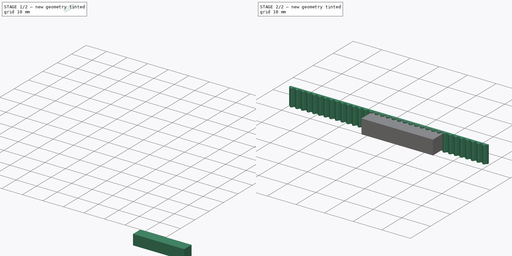
[diagram: build sequence overview — one tinted view per stage of 2, left to right]
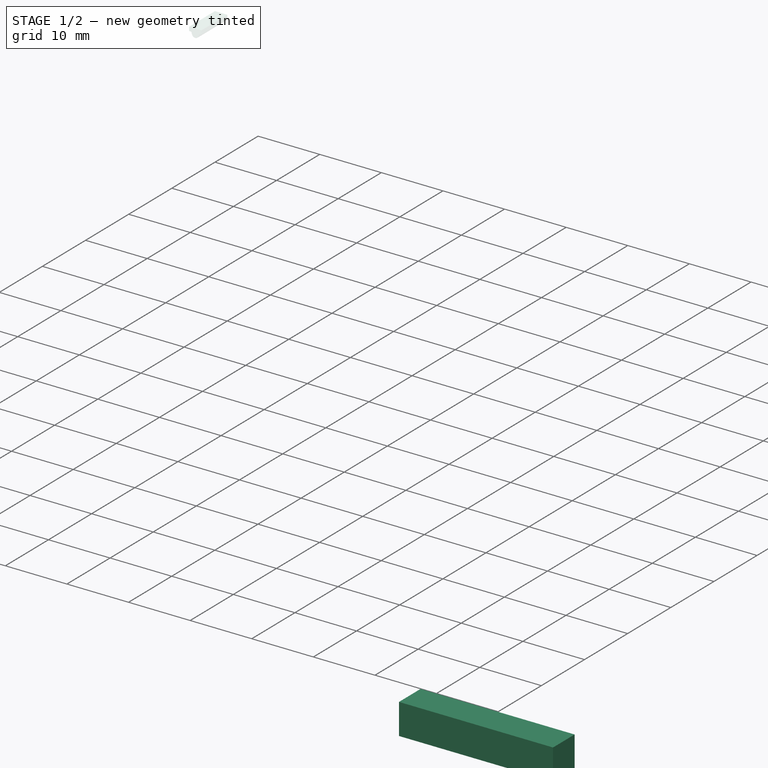
[diagram: stage 1 of 2 — iso view after this stage's code; geometry added in this stage tinted green]
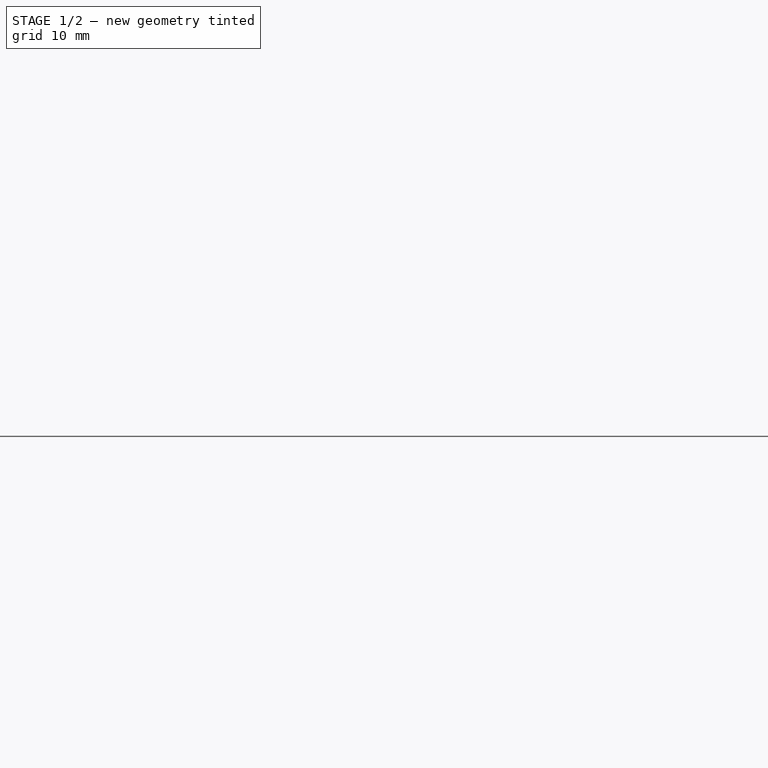
[diagram: stage 1 of 2 — front view after this stage's code; geometry added in this stage tinted green]
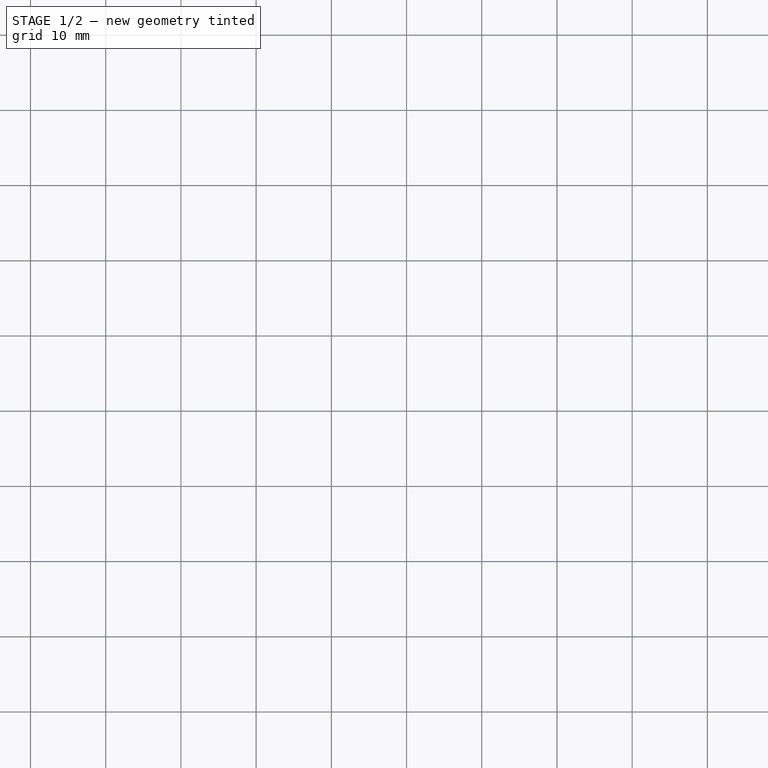
[diagram: stage 1 of 2 — top view after this stage's code; geometry added in this stage tinted green]
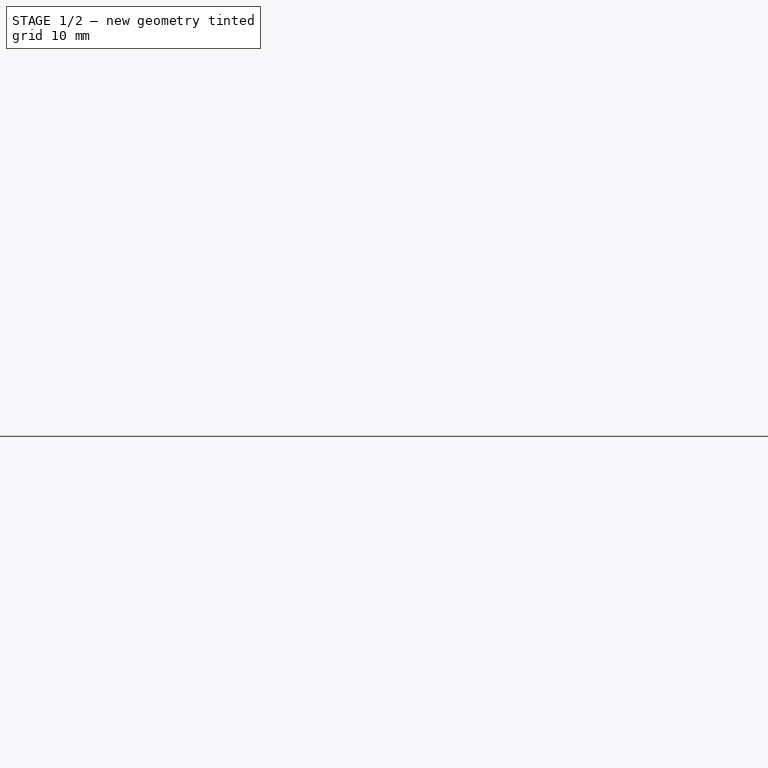
[diagram: stage 1 of 2 — right view after this stage's code; geometry added in this stage tinted green]
FCSTD DOCUMENT  (FreeCAD 0.16R6712 (Git))
Label: Beltpiece
License: All rights reserved
LicenseURL: http://en.wikipedia.org/wiki/All_rights_reserved
objects: Part::Part2DObjectPython×17, Sketcher::SketchObject×3, App::DocumentObjectGroup×3, PartDesign::Pad×1, Part::FeaturePython×1, Part::Box×1, Part::Feature×1
note: 25 computed .brp shape members not serialized (recipe doc carries the construction recipe); baked Part::Feature solids carry a one-line shape summary decoded from their .brp

FEATURE [Sketcher::SketchObject] Sketch  label="Beltpath"
  Placement = pos=(0,0,5.996) rot=(0,0,1;0rad)
  sketch-geometry (1):
    g0: LineSegment StartX=189.589 StartY=-167.771 StartZ=0 EndX=122.258 EndY=-167.771 EndZ=0
  constraints (1):
    c: Horizontal(g0)
FEATURE [Sketcher::SketchObject] Sketch002  label="Timing Belt Master Sketch"
  Placement = pos=(0,0,0) rot=(1,0,0;1.5708rad)
  sketch-geometry (11):
    g0: Circle CenterX=0 CenterY=-0.449 CenterZ=0 NormalX=0 NormalY=0 NormalZ=1 Radius=0.555
    g1: LineSegment [constr] StartX=-1 StartY=-1.004 StartZ=0 EndX=1 EndY=-1.004 EndZ=0
    g2: LineSegment StartX=-1 StartY=-0.254 StartZ=0 EndX=1 EndY=-0.254 EndZ=0
    g3: LineSegment StartX=-1 StartY=0.376 StartZ=0 EndX=1 EndY=0.376 EndZ=0
    g4: LineSegment StartX=-1 StartY=0.376 StartZ=0 EndX=-1 EndY=-1.004 EndZ=0
    g5: LineSegment StartX=1 StartY=0.376 StartZ=0 EndX=1 EndY=-1.004 EndZ=0
    g6: LineSegment [constr] StartX=-1 StartY=-0.449 StartZ=0 EndX=1 EndY=-0.449 EndZ=0
    g7: Circle CenterX=-0.740175 CenterY=-0.404 CenterZ=0 NormalX=0 NormalY=0 NormalZ=1 Radius=0.15
    g8: Circle CenterX=0.740175 CenterY=-0.404 CenterZ=0 NormalX=0 NormalY=0 NormalZ=1 Radius=0.15
    g9: Circle CenterX=-0.4 CenterY=-0.254 CenterZ=0 NormalX=0 NormalY=0 NormalZ=1 Radius=1
    g10: Circle CenterX=0.4 CenterY=-0.254 CenterZ=0 NormalX=0 NormalY=0 NormalZ=1 Radius=1
  constraints (33):
    c: Radius(g0) = 0.555
    c: PointOnObject(g0,g-2)
    c: Horizontal(g1)
    c: Tangent(g1,g0)
    c: DistanceX(g1) = 2
    c: Symmetric(g1,g1,g-2)
    c: Horizontal(g2)
    c: DistanceY(g2,g1) = -0.75
    c: Horizontal(g3)
    c: Equal(g1,g2)
    c: Equal(g2,g3)
    c: Vertical(g4)
    c: Coincident(g4,g1)
    c: Coincident(g4,g3)
    c: PointOnObject(g2,g4)
    c: Coincident(g5,g1)
    c: Coincident(g5,g3)
    c: DistanceY(g3,g1) = -1.38
    c: PointOnObject(g0,g6)
    c: DistanceY(g-1,g2) = -0.254
    c: Horizontal(g6)
    c: PointOnObject(g6,g4)
    c: PointOnObject(g6,g5)
    c: Radius(g7) = 0.15
    c: Equal(g8,g7)
    c: Symmetric(g7,g8,g-2)
    c: Radius(g9) = 1
    c: Equal(g10,g9)
    c: Symmetric(g10,g9,g-2)
    c: DistanceX(g-1,g10) = 0.4
    c: DistanceY(g7,g3) = 0.78
    c: DistanceX(g7,g3) = -0.259825
    c: PointOnObject(g10,g2)
FEATURE [App::DocumentObjectGroup] Group  label="Master Sketch"
  Group = -> [Sketch002]
FEATURE [Part::Part2DObjectPython] Circle  # Draft 2D object (typed FeaturePython)
  FirstAngle = 0
  LastAngle = 0
  MakeFace = true
  Placement = pos=(0,-0.449,0) rot=(0,0,1;0rad)
  Radius = 0.555
FEATURE [Part::Part2DObjectPython] Line  # Draft 2D object (typed FeaturePython)
  ChamferSize = 0
  Closed = false
  End = (1,-0.254,0)
  FilletRadius = 0
  MakeFace = true
  Points = (2) [(-1,-0.254,0),(1,-0.254,0)]
  Start = (-1,-0.254,0)
FEATURE [Part::Part2DObjectPython] DWire  # Draft 2D object (typed FeaturePython)
  ChamferSize = 0
  Closed = false
  End = (1,-1.004,0)
  FilletRadius = 0
  MakeFace = true
  Points = (4) [(-1,-1.004,0),(-1,0.376,0),(1,0.376,0),(1,-1.004,0)]
  Start = (-1,-1.004,0)
FEATURE [Part::Part2DObjectPython] Circle001  # Draft 2D object (typed FeaturePython)
  FirstAngle = 0
  LastAngle = 0
  MakeFace = true
  Placement = pos=(-0.740175,-0.404,0) rot=(0,0,1;0rad)
  Radius = 0.15
FEATURE [Part::Part2DObjectPython] Circle002  # Draft 2D object (typed FeaturePython)
  FirstAngle = 0
  LastAngle = 0
  MakeFace = true
  Placement = pos=(0.740175,-0.404,0) rot=(0,0,1;0rad)
  Radius = 0.15
FEATURE [Part::Part2DObjectPython] Circle003  # Draft 2D object (typed FeaturePython)
  FirstAngle = 0
  LastAngle = 0
  MakeFace = true
  Placement = pos=(-0.4,-0.254,0) rot=(0,0,1;0rad)
  Radius = 1
FEATURE [Part::Part2DObjectPython] Circle004  # Draft 2D object (typed FeaturePython)
  FirstAngle = 0
  LastAngle = 0
  MakeFace = true
  Placement = pos=(0.4,-0.254,0) rot=(0,0,1;0rad)
  Radius = 1
FEATURE [App::DocumentObjectGroup] Group001  label="Draft from Sketch"
  Group = -> [Circle,Line,DWire,Circle001,Circle002,Circle003,Circle004]
FEATURE [Part::Part2DObjectPython] Arc  # Draft 2D object (typed FeaturePython)
  FirstAngle = 7.49472
  LastAngle = 90
  MakeFace = false
  Placement = pos=(-0.740175,-0.404,0) rot=(0,0,1;0rad)
  Radius = 0.15
FEATURE [Part::Part2DObjectPython] Arc001  # Draft 2D object (typed FeaturePython)
  FirstAngle = 90
  LastAngle = 172.505
  MakeFace = false
  Placement = pos=(0.740175,-0.404,0) rot=(0,0,1;0rad)
  Radius = 0.15
FEATURE [Part::Part2DObjectPython] Line001  # Draft 2D object (typed FeaturePython)
  ChamferSize = 0
  Closed = false
  End = (-1,-0.254,0)
  FilletRadius = 0
  MakeFace = false
  Points = (2) [(-0.740175,-0.254,0),(-1,-0.254,0)]
  Start = (-0.740175,-0.254,0)
FEATURE [Part::Part2DObjectPython] Line002  # Draft 2D object (typed FeaturePython)
  ChamferSize = 0
  Closed = false
  End = (1,-0.254,0)
  FilletRadius = 0
  MakeFace = false
  Points = (2) [(0.740175,-0.254,0),(1,-0.254,0)]
  Start = (0.740175,-0.254,0)
FEATURE [Part::Part2DObjectPython] Arc002  # Draft 2D object (typed FeaturePython)
  FirstAngle = -154.011
  LastAngle = -25.9892
  MakeFace = false
  Placement = pos=(0,-0.449,0) rot=(0,0,1;0rad)
  Radius = 0.555
FEATURE [Part::Part2DObjectPython] Arc003  # Draft 2D object (typed FeaturePython)
  FirstAngle = -25.9892
  LastAngle = -7.49472
  MakeFace = false
  Placement = pos=(-0.4,-0.254,0) rot=(0,0,1;0rad)
  Radius = 1
FEATURE [Part::Part2DObjectPython] Arc004  # Draft 2D object (typed FeaturePython)
  FirstAngle = -172.505
  LastAngle = -154.011
  MakeFace = false
  Placement = pos=(0.4,-0.254,0) rot=(0,0,1;0rad)
  Radius = 1
FEATURE [Part::Part2DObjectPython] Line003  # Draft 2D object (typed FeaturePython)
  ChamferSize = 0
  Closed = false
  End = (-1,0.376,0)
  FilletRadius = 0
  MakeFace = false
  Points = (2) [(-1,-0.254,0),(-1,0.376,0)]
  Start = (-1,-0.254,0)
FEATURE [Part::Part2DObjectPython] Line004  # Draft 2D object (typed FeaturePython)
  ChamferSize = 0
  Closed = false
  End = (1,0.376,0)
  FilletRadius = 0
  MakeFace = false
  Points = (2) [(1,-0.254,0),(1,0.376,0)]
  Start = (1,-0.254,0)
FEATURE [Part::Part2DObjectPython] Line005  # Draft 2D object (typed FeaturePython)
  ChamferSize = 0
  Closed = false
  End = (1,0.376,0)
  FilletRadius = 0
  MakeFace = false
  Points = (2) [(-1,0.376,0),(1,0.376,0)]
  Start = (-1,0.376,0)
FEATURE [App::DocumentObjectGroup] Group002  label="Outline from Draft"
  Group = -> [Arc,Arc001,Line001,Line002,Arc002,Arc003,Arc004,Line003,Line004,Line005]
FEATURE [Sketcher::SketchObject] Sketch003  label="Timing Belt sketch from outline"
  Placement = pos=(0,0,0) rot=(1,0,0;1.5708rad)
  sketch-geometry (10):
    g0: ArcOfCircle CenterX=-0.740173 CenterY=-0.403997 CenterZ=0 NormalX=0 NormalY=0 NormalZ=1 Radius=0.149997 StartAngle=0.134719 EndAngle=1.57082
    g1: LineSegment StartX=1 StartY=-0.254 StartZ=0 EndX=1 EndY=0.376 EndZ=0
    g2: ArcOfCircle CenterX=0.740176 CenterY=-0.404 CenterZ=0 NormalX=0 NormalY=0 NormalZ=1 Radius=0.15 StartAngle=1.5708 EndAngle=3.01411
    g3: LineSegment StartX=0.740176 StartY=-0.254 StartZ=0 EndX=1 EndY=-0.254 EndZ=0
    g4: LineSegment StartX=-0.740176 StartY=-0.254 StartZ=0 EndX=-1 EndY=-0.254 EndZ=0
    g5: ArcOfCircle CenterX=0 CenterY=-0.448894 CenterZ=0 NormalX=0 NormalY=0 NormalZ=1 Radius=0.555048 StartAngle=3.59519 EndAngle=5.83002
    g6: ArcOfCircle CenterX=-0.400001 CenterY=-0.254 CenterZ=0 NormalX=0 NormalY=0 NormalZ=1 Radius=1 StartAngle=5.82992 EndAngle=6.15188
    g7: LineSegment StartX=-1 StartY=0.376 StartZ=0 EndX=1 EndY=0.376 EndZ=0
    g8: ArcOfCircle CenterX=0.400001 CenterY=-0.254 CenterZ=0 NormalX=0 NormalY=0 NormalZ=1 Radius=1 StartAngle=3.27181 EndAngle=3.5951
    g9: LineSegment StartX=-1 StartY=-0.254 StartZ=0 EndX=-1 EndY=0.376 EndZ=0
  constraints (34):
    c: Coincident(g7,g9)
    c: Coincident(g1,g7)
    c: Coincident(g4,g9)
    c: Coincident(g0,g4)
    c: Coincident(g0,g8)
    c: Coincident(g5,g8)
    c: Coincident(g5,g6)
    c: Coincident(g2,g6)
    c: Coincident(g2,g3)
    c: Coincident(g1,g3)
    c: PointOnObject(g5,g-2)
    c: DistanceX(g7) = 2
    c: Symmetric(g7,g1,g-2)
    c: Equal(g9,g1)
    c: Equal(g4,g3)
    c: DistanceY(g9) = 0.63
    c: DistanceX(g4) = -0.259824
    c: Vertical(g9)
    c: Horizontal(g4)
    c: Horizontal(g3)
    c: Symmetric(g1,g4,g-2)
    c: DistanceY(g-1,g7) = 0.376
    c: DistanceX(g8) = 0.400001
    c: DistanceY(g8) = -0.254
    c: DistanceX(g6) = -0.400001
    c: DistanceY(g6) = -0.254
    c: DistanceX(g0) = -0.740173
    c: DistanceY(g0) = -0.403997
    c: DistanceX(g2) = 0.740176
    c: DistanceY(g2) = -0.404
    c: Equal(g8,g6)
    c: Radius(g5) = 0.555048
    c: DistanceX(g5) = 0.499025
    c: DistanceY(g5) = -0.691901
FEATURE [PartDesign::Pad] Pad  label="Timing Belt GT2"
  Length = 6
  Length2 = 100
  Placement = pos=(0,0,0) rot=(1,0,0;1.5708rad)
  Sketch = -> Sketch003
  Type = 0
FEATURE [Part::Box] Box  label="Würfel"
  Height = 5
  Length = 25
  Placement = pos=(150,-172.995,0.5) rot=(0,0,1;0rad)
  Width = 5
FEATURE [Part::Feature] PathArray001
  shape: bbox 69.33 x 1.38 x 6 mm, 420 faces, 35 solids (baked)
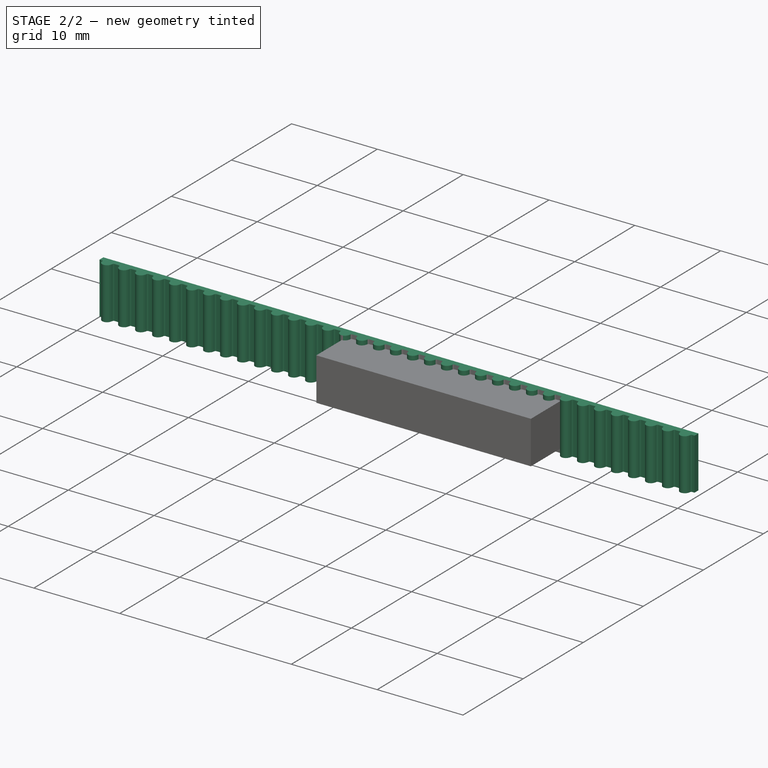
[diagram: stage 2 of 2 — iso view after this stage's code; geometry added in this stage tinted green]
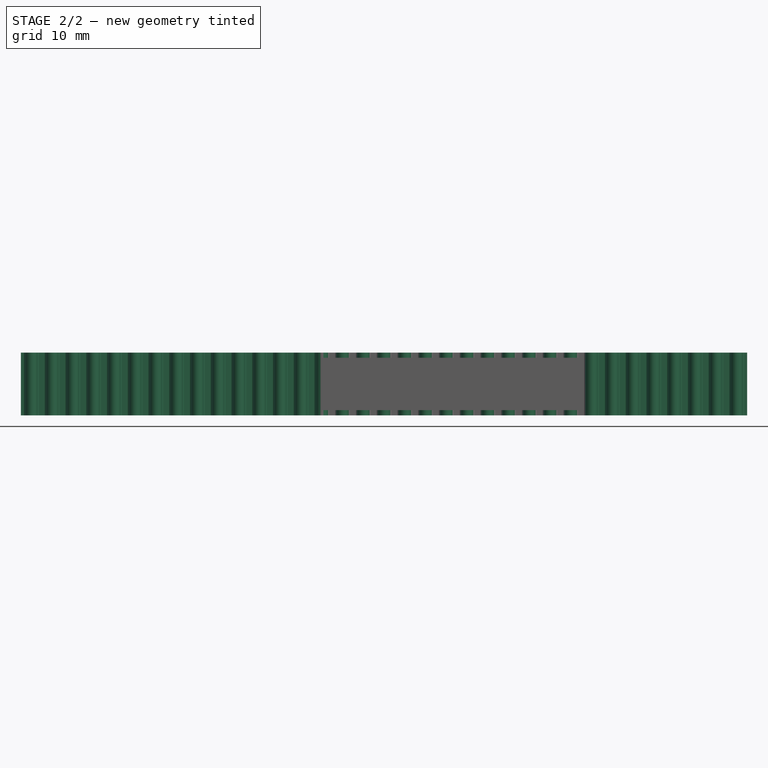
[diagram: stage 2 of 2 — front view after this stage's code; geometry added in this stage tinted green]
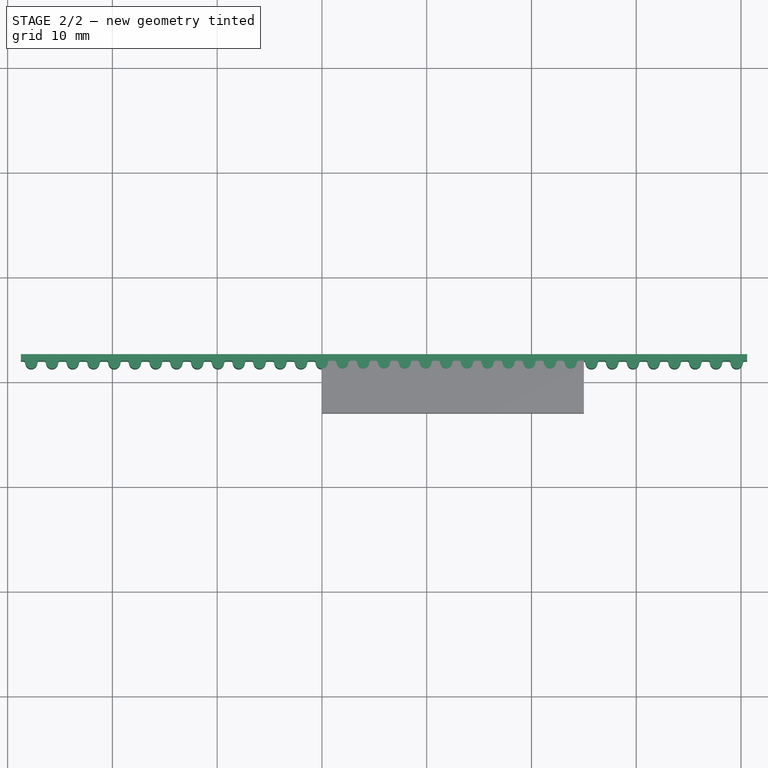
[diagram: stage 2 of 2 — top view after this stage's code; geometry added in this stage tinted green]
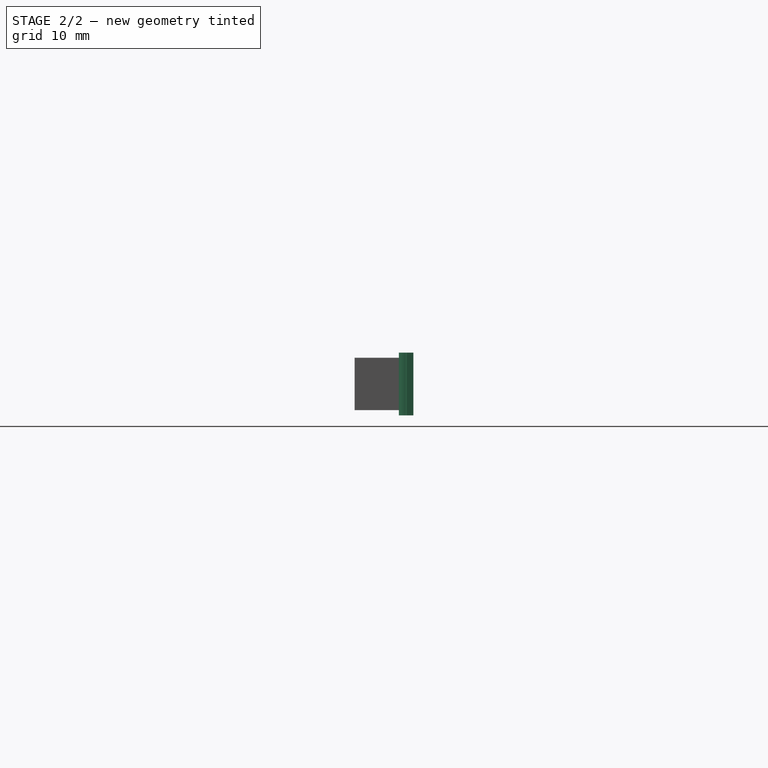
[diagram: stage 2 of 2 — right view after this stage's code; geometry added in this stage tinted green]
FEATURE [Part::FeaturePython] PathArray  # WARN: FeaturePython — macro-defined, semantics opaque (R4)
  Align = true
  Base = -> Pad
  Count = 35
  PathObj = -> Sketch
  Xlate = (0,0,0)
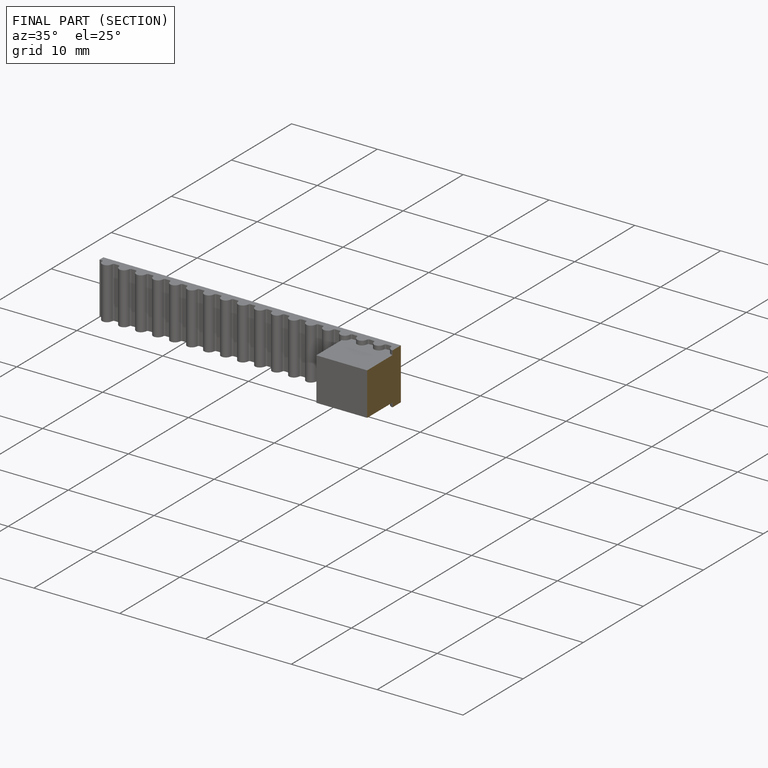
[diagram: finished part — half-section view (interior)]
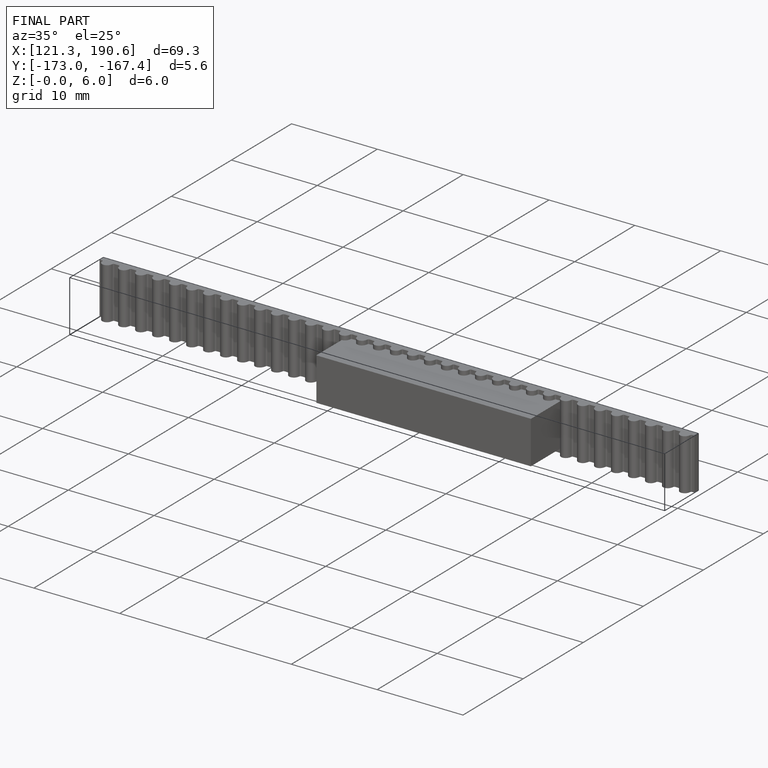
[diagram: finished part — iso view with bounding-box wireframe]
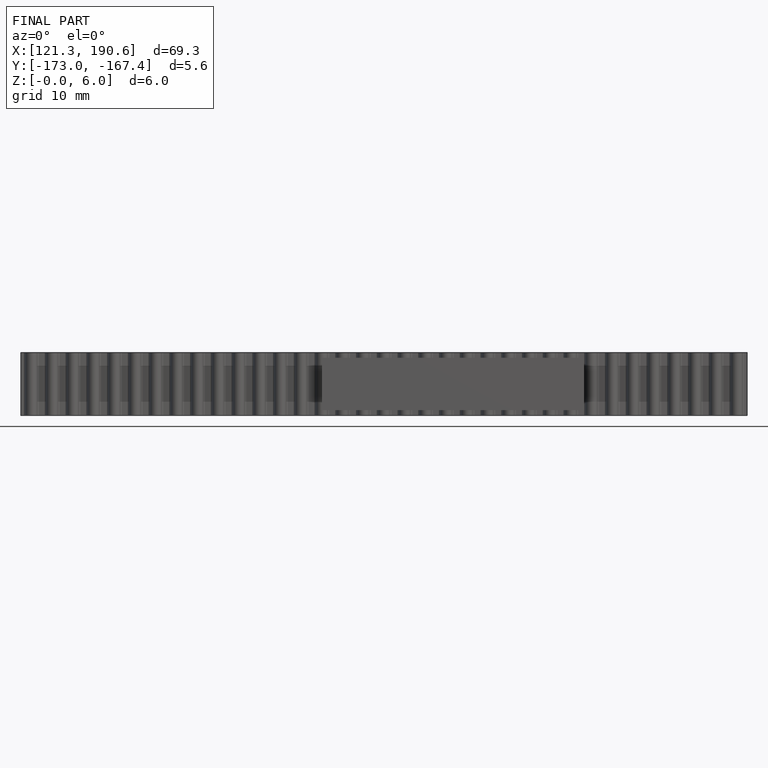
[diagram: finished part — front view with bounding-box wireframe]
